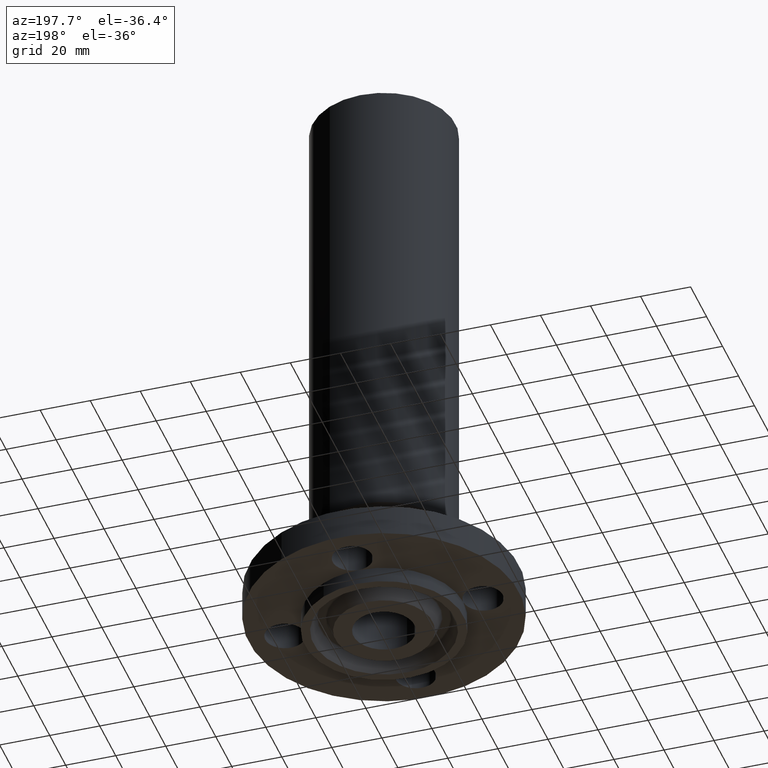
[diagram: clean part render]
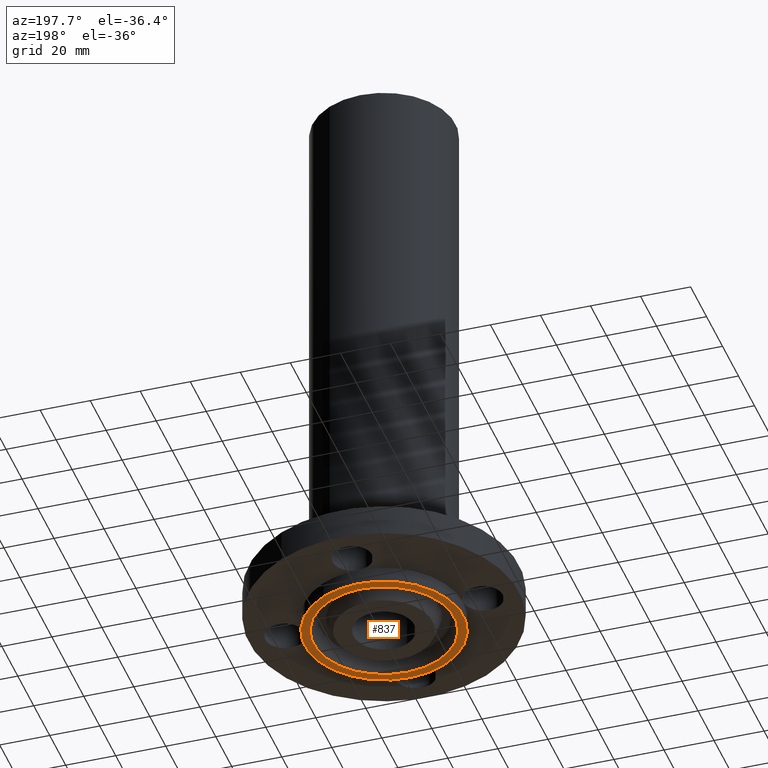
[diagram: same view with one face highlighted and labeled with its STEP entity id]
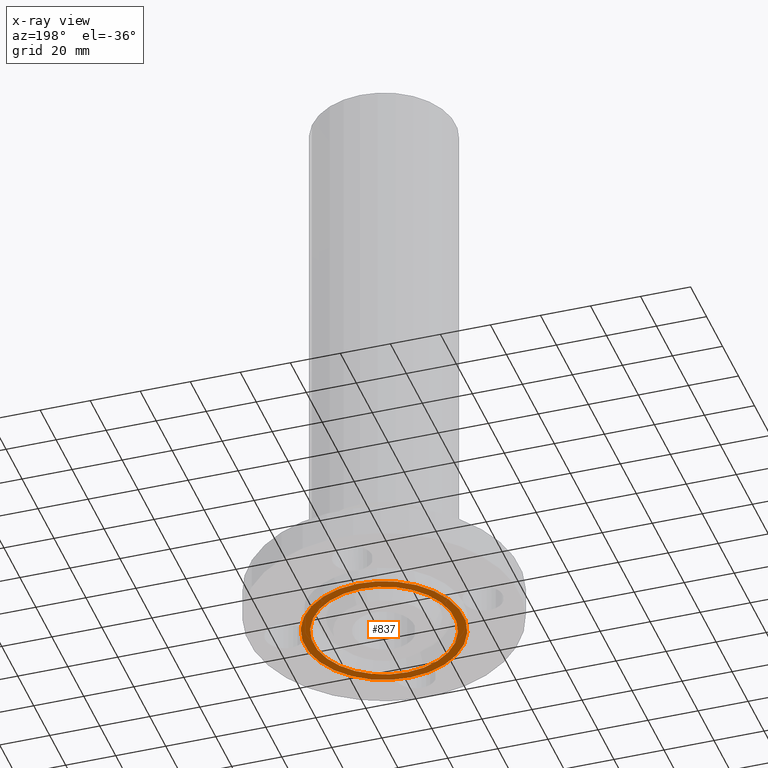
[diagram: x-ray of the same camera — body ghosted, the highlighted face saturated]
A machine part, auxiliary view. The second image highlights one B-rep face of the part: STEP entity #837.
The next image is the same camera in x-ray: the body ghosted, the highlighted face saturated — about 0% of this face is hidden behind the body in this view.
In plain terms, the highlighted planar face has unit normal (0, 0, -1).
Its self-contained STEP definition (entity closure, byte-faithful):
#595=AXIS2_PLACEMENT_3D('Plane Axis2P3D',#592,#593,#594) ;
#786=AXIS2_PLACEMENT_3D('Circle Axis2P3D',#784,#785,$) ;
#805=AXIS2_PLACEMENT_3D('Circle Axis2P3D',#803,#804,$) ;
#817=AXIS2_PLACEMENT_3D('Circle Axis2P3D',#815,#816,$) ;
#826=AXIS2_PLACEMENT_3D('Circle Axis2P3D',#824,#825,$) ;
#592=CARTESIAN_POINT('Axis2P3D Location',(0.,0.765500000003,-0.250000000001)) ;
#781=CARTESIAN_POINT('Vertex',(-0.531922635083,-0.973677852421,-0.250000000001)) ;
#784=CARTESIAN_POINT('Axis2P3D Location',(0.,0.,-0.250000000001)) ;
#788=CARTESIAN_POINT('Vertex',(0.531922635083,0.973677852421,-0.250000000001)) ;
#803=CARTESIAN_POINT('Axis2P3D Location',(0.,0.,-0.250000000001)) ;
#815=CARTESIAN_POINT('Axis2P3D Location',(0.,0.,-0.250000000001)) ;
#819=CARTESIAN_POINT('Vertex',(-0.599281923258,-1.09697820237,-0.250000000001)) ;
#821=CARTESIAN_POINT('Vertex',(0.599281923258,1.09697820237,-0.250000000001)) ;
#824=CARTESIAN_POINT('Axis2P3D Location',(0.,0.,-0.250000000001)) ;
#593=DIRECTION('Axis2P3D Direction',(0.,0.,-0.0393700787402)) ;
#594=DIRECTION('Axis2P3D XDirection',(0.0393700787402,0.,0.)) ;
#785=DIRECTION('Axis2P3D Direction',(0.,0.,-0.0393700787402)) ;
#804=DIRECTION('Axis2P3D Direction',(0.,0.,-0.0393700787402)) ;
#816=DIRECTION('Axis2P3D Direction',(0.,0.,-0.0393700787402)) ;
#825=DIRECTION('Axis2P3D Direction',(0.,0.,-0.0393700787402)) ;
#830=ORIENTED_EDGE('',*,*,#823,.T.) ;
#831=ORIENTED_EDGE('',*,*,#828,.T.) ;
#834=ORIENTED_EDGE('',*,*,#807,.F.) ;
#835=ORIENTED_EDGE('',*,*,#790,.F.) ;
#836=FACE_BOUND('',#833,.T.) ;
#837=ADVANCED_FACE('PartBody',(#832,#836),#596,.T.) ;
#787=CIRCLE('generated circle',#786,1.1095) ;
#806=CIRCLE('generated circle',#805,1.1095) ;
#818=CIRCLE('generated circle',#817,1.25000000001) ;
#827=CIRCLE('generated circle',#826,1.25000000001) ;
#790=EDGE_CURVE('',#782,#789,#787,.T.) ;
#807=EDGE_CURVE('',#789,#782,#806,.T.) ;
#823=EDGE_CURVE('',#820,#822,#818,.T.) ;
#828=EDGE_CURVE('',#822,#820,#827,.T.) ;
#829=EDGE_LOOP('',(#830,#831)) ;
#833=EDGE_LOOP('',(#834,#835)) ;
#832=FACE_OUTER_BOUND('',#829,.T.) ;
#596=PLANE('',#595) ;
#782=VERTEX_POINT('',#781) ;
#789=VERTEX_POINT('',#788) ;
#820=VERTEX_POINT('',#819) ;
#822=VERTEX_POINT('',#821) ;